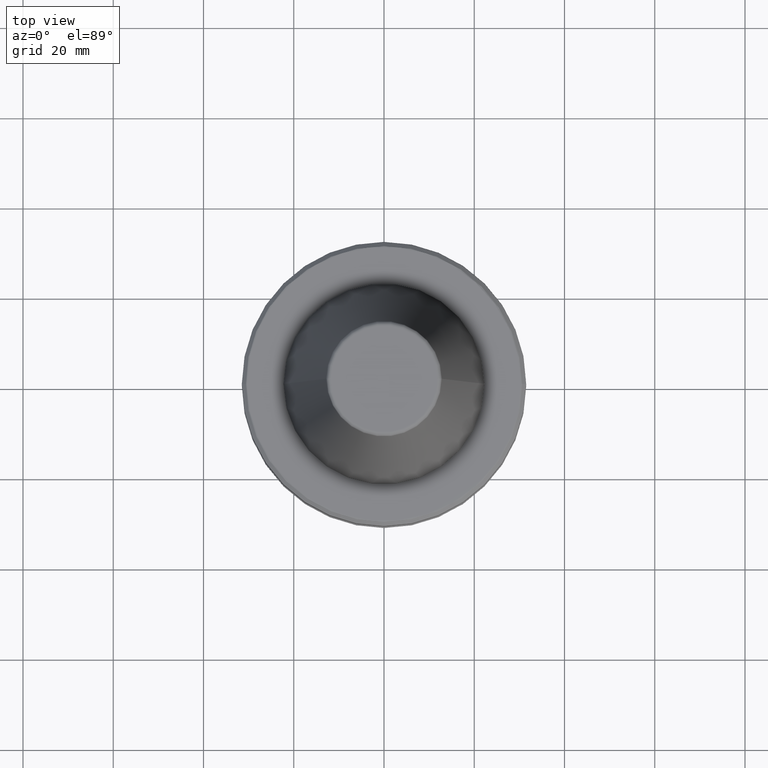
[diagram: clean part render]
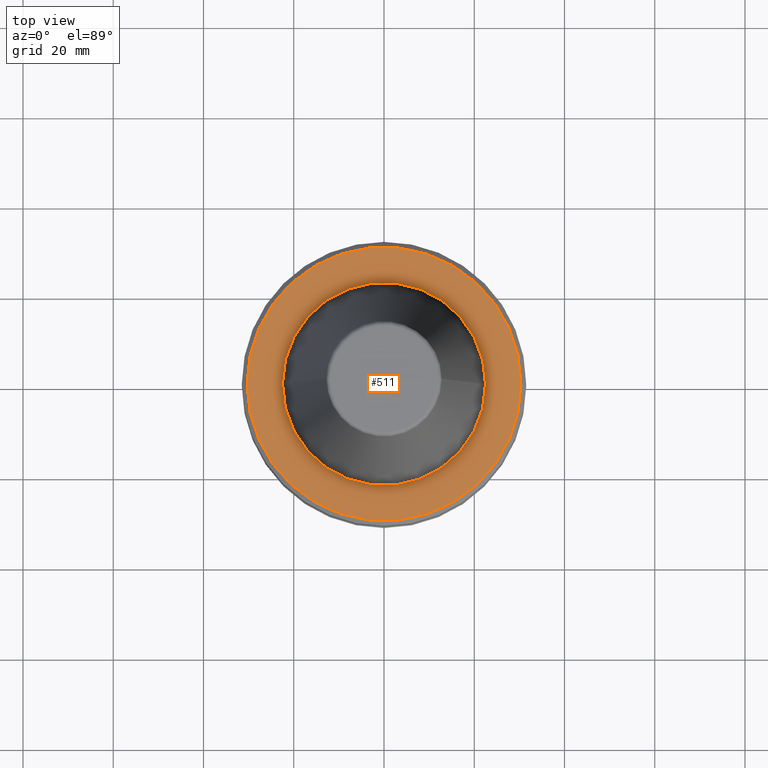
[diagram: same view with one face highlighted and labeled with its STEP entity id]
A machine part, top view. The second image highlights one B-rep face of the part: STEP entity #511.
In plain terms, the highlighted planar face has unit normal (0, -0, 1).
Its self-contained STEP definition (entity closure, byte-faithful):
#13 = VERTEX_POINT ( 'NONE', #456 ) ;
#70 = ORIENTED_EDGE ( 'NONE', *, *, #90, .F. ) ;
#90 = EDGE_CURVE ( 'NONE', #13, #1140, #1357, .T. ) ;
#123 = ORIENTED_EDGE ( 'NONE', *, *, #647, .T. ) ;
#153 = VERTEX_POINT ( 'NONE', #374 ) ;
#205 = DIRECTION ( 'NONE',  ( 1.000000000000000000, 0.0000000000000000000, 0.0000000000000000000 ) ) ;
#256 = CARTESIAN_POINT ( 'NONE',  ( 0.0000000000000000000, 0.0000000000000000000, -2.000000000000001800 ) ) ;
#258 = DIRECTION ( 'NONE',  ( -0.0000000000000000000, -0.0000000000000000000, 1.000000000000000000 ) ) ;
#260 = DIRECTION ( 'NONE',  ( 1.000000000000000000, 0.0000000000000000000, 0.0000000000000000000 ) ) ;
#271 = ORIENTED_EDGE ( 'NONE', *, *, #1263, .F. ) ;
#374 = CARTESIAN_POINT ( 'NONE',  ( -30.33431457505075800, 3.732201245991191100E-015, -2.000000000000001800 ) ) ;
#385 = FACE_BOUND ( 'NONE', #463, .T. ) ;
#456 = CARTESIAN_POINT ( 'NONE',  ( 22.50000000000000000, 0.0000000000000000000, -2.000000000000001300 ) ) ;
#463 = EDGE_LOOP ( 'NONE', ( #70, #271 ) ) ;
#511 = ADVANCED_FACE ( 'NONE', ( #585, #385 ), #986, .T. ) ;
#538 = CIRCLE ( 'NONE', #591, 22.50000000000000000 ) ;
#566 = VERTEX_POINT ( 'NONE', #1037 ) ;
#585 = FACE_OUTER_BOUND ( 'NONE', #828, .T. ) ;
#591 = AXIS2_PLACEMENT_3D ( 'NONE', #705, #707, #711 ) ;
#647 = EDGE_CURVE ( 'NONE', #566, #153, #1484, .T. ) ;
#705 = CARTESIAN_POINT ( 'NONE',  ( 0.0000000000000000000, 0.0000000000000000000, -2.000000000000001800 ) ) ;
#707 = DIRECTION ( 'NONE',  ( -0.0000000000000000000, -0.0000000000000000000, 1.000000000000000000 ) ) ;
#709 = AXIS2_PLACEMENT_3D ( 'NONE', #1314, #1204, #1282 ) ;
#711 = DIRECTION ( 'NONE',  ( 1.000000000000000000, 0.0000000000000000000, 0.0000000000000000000 ) ) ;
#807 = ORIENTED_EDGE ( 'NONE', *, *, #936, .T. ) ;
#828 = EDGE_LOOP ( 'NONE', ( #123, #807 ) ) ;
#853 = AXIS2_PLACEMENT_3D ( 'NONE', #993, #1013, #1015 ) ;
#896 = CIRCLE ( 'NONE', #945, 30.33431457505075800 ) ;
#936 = EDGE_CURVE ( 'NONE', #153, #566, #896, .T. ) ;
#945 = AXIS2_PLACEMENT_3D ( 'NONE', #1163, #1337, #205 ) ;
#986 = PLANE ( 'NONE',  #853 ) ;
#993 = CARTESIAN_POINT ( 'NONE',  ( 0.0000000000000000000, 0.0000000000000000000, -2.000000000000002700 ) ) ;
#1013 = DIRECTION ( 'NONE',  ( 0.0000000000000000000, -0.0000000000000000000, 1.000000000000000000 ) ) ;
#1015 = DIRECTION ( 'NONE',  ( 1.000000000000000000, 0.0000000000000000000, 0.0000000000000000000 ) ) ;
#1018 = CARTESIAN_POINT ( 'NONE',  ( -22.50000000000000000, 2.755455298081544800E-015, -2.000000000000001300 ) ) ;
#1037 = CARTESIAN_POINT ( 'NONE',  ( 30.33431457505075800, 0.0000000000000000000, -2.000000000000001800 ) ) ;
#1140 = VERTEX_POINT ( 'NONE', #1018 ) ;
#1163 = CARTESIAN_POINT ( 'NONE',  ( 0.0000000000000000000, 0.0000000000000000000, -2.000000000000001800 ) ) ;
#1204 = DIRECTION ( 'NONE',  ( -0.0000000000000000000, -0.0000000000000000000, 1.000000000000000000 ) ) ;
#1220 = AXIS2_PLACEMENT_3D ( 'NONE', #256, #258, #260 ) ;
#1263 = EDGE_CURVE ( 'NONE', #1140, #13, #538, .T. ) ;
#1282 = DIRECTION ( 'NONE',  ( 1.000000000000000000, 0.0000000000000000000, 0.0000000000000000000 ) ) ;
#1314 = CARTESIAN_POINT ( 'NONE',  ( 0.0000000000000000000, 0.0000000000000000000, -2.000000000000001800 ) ) ;
#1337 = DIRECTION ( 'NONE',  ( -0.0000000000000000000, -0.0000000000000000000, 1.000000000000000000 ) ) ;
#1357 = CIRCLE ( 'NONE', #1220, 22.50000000000000000 ) ;
#1484 = CIRCLE ( 'NONE', #709, 30.33431457505075800 ) ;